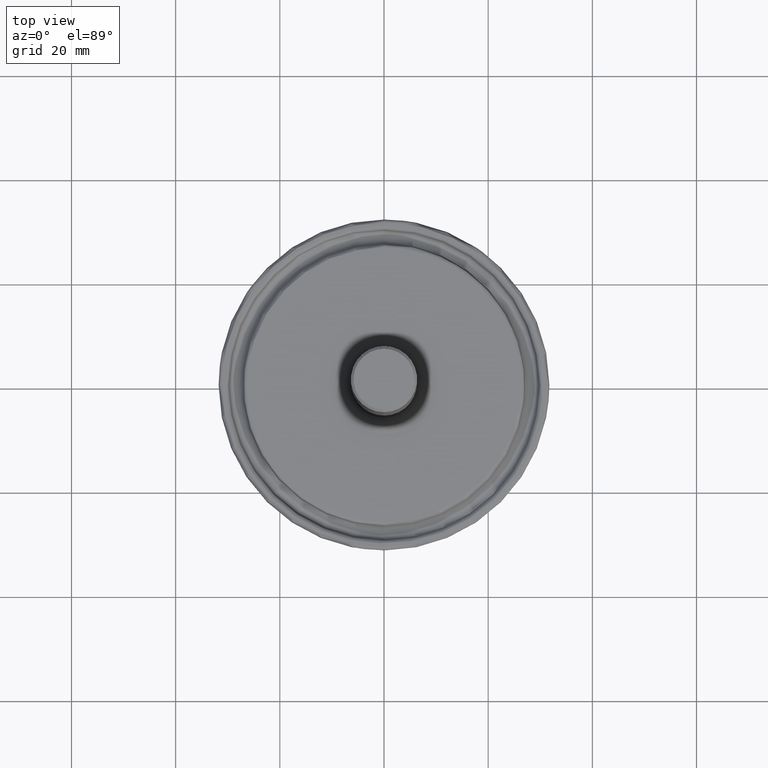
[diagram: clean part render]
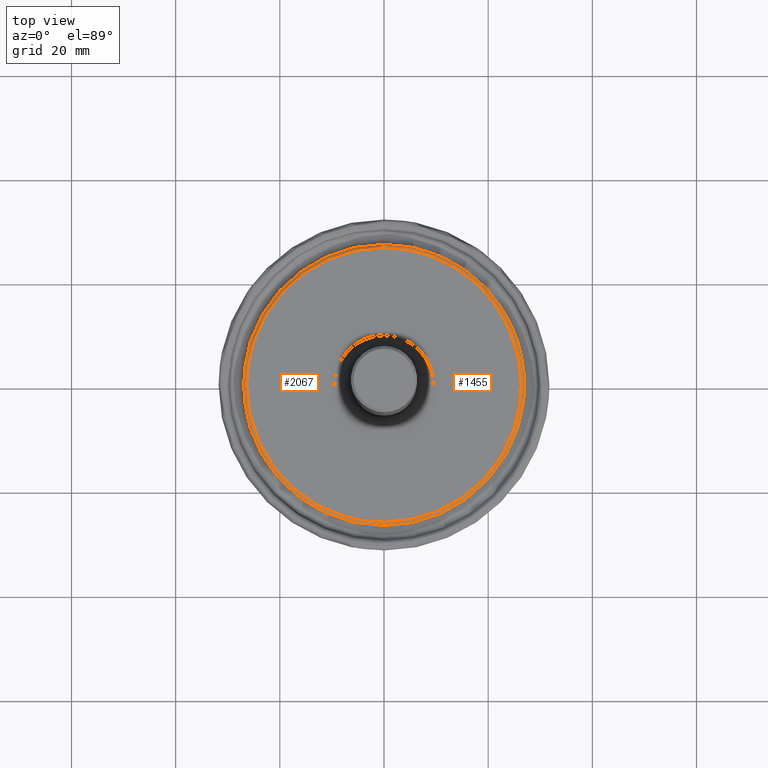
[diagram: same view with one multi-face feature highlighted, each face labeled with its STEP entity id]
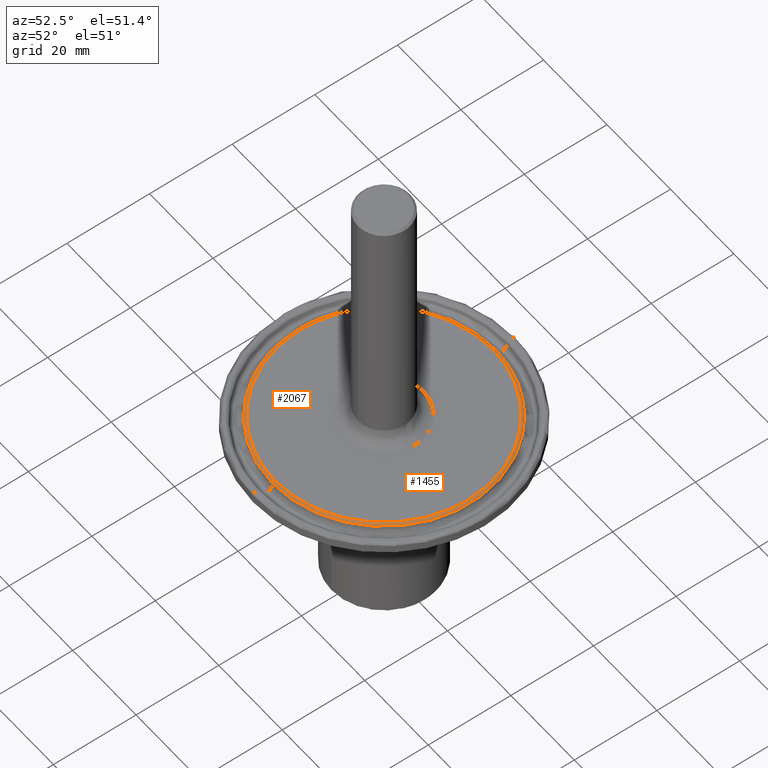
[diagram: same view with one multi-face feature highlighted, each face labeled with its STEP entity id]
A machine part, top view. The highlighted faces form ONE feature: a constant-radius fillet chain: 2 tangent blend faces with common blend radius 0.635 mm. The faces share edges in the B-rep.
A second angle (auxiliary view) of the same feature is appended — it is thin or edge-on in the first view.
Their STEP definitions:
[1] entity #2067 (Torus):
#9 = CARTESIAN_POINT ( 'NONE',  ( -0.3259867117848793700, -0.9863322835308909700, 1.749999999999998200 ) ) ;
#19 = CARTESIAN_POINT ( 'NONE',  ( -0.6845116097040635500, -0.7808722235221458000, 1.749999999999998900 ) ) ;
#21 = EDGE_CURVE ( 'NONE', #194, #2201, #453, .T. ) ;
#30 = CARTESIAN_POINT ( 'NONE',  ( -0.2606916650676283600, -1.005168411651658200, 1.749999999999998200 ) ) ;
#52 = VERTEX_POINT ( 'NONE', #307 ) ;
#99 = CARTESIAN_POINT ( 'NONE',  ( -0.9638887279538227400, 0.3863122150850117300, 1.749999999999999300 ) ) ;
#150 = CARTESIAN_POINT ( 'NONE',  ( -1.029327078243765800, -0.1371285274324676700, 1.749999999999998900 ) ) ;
#163 = DIRECTION ( 'NONE',  ( 1.000000000000000000, 1.224646799147353200E-016, 1.101989510860683400E-031 ) ) ;
#176 = CARTESIAN_POINT ( 'NONE',  ( -1.030529809761967300, -0.1278325719184723900, 1.749999999999999100 ) ) ;
#189 = CARTESIAN_POINT ( 'NONE',  ( -0.4908492883073446400, -0.9150876700406263000, 1.749999999999998400 ) ) ;
#194 = VERTEX_POINT ( 'NONE', #408 ) ;
#207 = CARTESIAN_POINT ( 'NONE',  ( -0.2582318550615463300, -1.005803274884865800, 1.749999999999998400 ) ) ;
#216 = CARTESIAN_POINT ( 'NONE',  ( -0.2733551526103650800, -1.001820746916894000, 1.749999999999998900 ) ) ;
#224 = CARTESIAN_POINT ( 'NONE',  ( -0.5486438821818544500, -0.8820525481146519500, 1.749999999999998400 ) ) ;
#253 = CARTESIAN_POINT ( 'NONE',  ( -0.03175402716435860000, 1.038420217401230000, 1.750000000000000200 ) ) ;
#262 = CARTESIAN_POINT ( 'NONE',  ( -0.1870020693033950000, 1.021443931192805400, 1.750000000000000200 ) ) ;
#271 = CARTESIAN_POINT ( 'NONE',  ( -0.1879194814532065300, 1.021275614857099200, 1.749999999999999300 ) ) ;
#280 = DIRECTION ( 'NONE',  ( -0.0000000000000000000, -8.998427233288253400E-016, 1.000000000000000000 ) ) ;
#298 = CARTESIAN_POINT ( 'NONE',  ( -1.038421164981144300, -9.864860205574895900E-011, 1.749999999991021200 ) ) ;
#307 = CARTESIAN_POINT ( 'NONE',  ( 2.496769776809862400E-016, -1.038420217418026100, 1.749999999999998200 ) ) ;
#315 = CARTESIAN_POINT ( 'NONE',  ( -0.5608735109017720700, 0.8739237310835570300, 1.750000000000000000 ) ) ;
#335 = CARTESIAN_POINT ( 'NONE',  ( 0.0000000000000000000, 1.038420217401227400, 1.725000000000001400 ) ) ;
#336 = CARTESIAN_POINT ( 'NONE',  ( -0.5161134788368816300, 0.9013864674090308300, 1.750000000000000200 ) ) ;
#350 = CARTESIAN_POINT ( 'NONE',  ( -1.019122524086511200, -0.2022552306859463400, 1.749999999999998900 ) ) ;
#361 = EDGE_LOOP ( 'NONE', ( #469, #779, #367, #2286, #740 ) ) ;
#367 = ORIENTED_EDGE ( 'NONE', *, *, #1582, .F. ) ;
#375 = CARTESIAN_POINT ( 'NONE',  ( -0.9973403103171486500, -0.2891895068565744100, 1.749999999999998400 ) ) ;
#383 = CARTESIAN_POINT ( 'NONE',  ( -1.038421164981144300, -9.864860205574895900E-011, 1.749999999991021200 ) ) ;
#407 = CARTESIAN_POINT ( 'NONE',  ( -0.8088798797885385900, -0.6521958468894716300, 1.749999999999998400 ) ) ;
#408 = CARTESIAN_POINT ( 'NONE',  ( 6.594054980606114000E-017, 1.038420217401229800, 1.750000000000000000 ) ) ;
#413 = VERTEX_POINT ( 'NONE', #567 ) ;
#415 = CARTESIAN_POINT ( 'NONE',  ( -0.9189699303666411000, -0.4846645632887349200, 1.749999999999999300 ) ) ;
#424 = AXIS2_PLACEMENT_3D ( 'NONE', #1631, #280, #876 ) ;
#451 = CARTESIAN_POINT ( 'NONE',  ( -0.1821206148999916800, 1.022328509556694700, 1.749999999999999600 ) ) ;
#453 = CIRCLE ( 'NONE', #878, 0.02500000000000014400 ) ;
#469 = ORIENTED_EDGE ( 'NONE', *, *, #1021, .F. ) ;
#487 = CARTESIAN_POINT ( 'NONE',  ( -0.8679533817657401100, 0.5700689935369375200, 1.750000000000000000 ) ) ;
#508 = CARTESIAN_POINT ( 'NONE',  ( -0.8883524830527626000, 0.5388685109817371600, 1.750000000000000200 ) ) ;
#516 = CARTESIAN_POINT ( 'NONE',  ( -0.8516741874776490000, 0.5942342001564170400, 1.750000000000000000 ) ) ;
#521 = CARTESIAN_POINT ( 'NONE',  ( -0.9147966099078624900, 0.4935950555970981000, 1.749999999999999600 ) ) ;
#536 = CARTESIAN_POINT ( 'NONE',  ( -1.033922064068743400, -0.09776786833857538400, 1.749999999999998900 ) ) ;
#546 = CARTESIAN_POINT ( 'NONE',  ( -1.038421154453198700, -0.02307202554230055800, 1.749999999999999300 ) ) ;
#552 = CARTESIAN_POINT ( 'NONE',  ( -1.029285697143051700, -0.1374389672201219400, 1.749999999999999100 ) ) ;
#556 = CARTESIAN_POINT ( 'NONE',  ( 1.271697995410313700E-016, -1.038420217401230500, 1.724999999999999900 ) ) ;
#567 = CARTESIAN_POINT ( 'NONE',  ( 1.325630225168412200E-016, -1.062571017127726500, 1.731460562867947800 ) ) ;
#575 = CARTESIAN_POINT ( 'NONE',  ( -0.7739947928155801500, -0.6939684828888171800, 1.749999999999998900 ) ) ;
#581 = CARTESIAN_POINT ( 'NONE',  ( -0.8393187701294979600, -0.6114673053687513800, 1.749999999999998900 ) ) ;
#602 = CARTESIAN_POINT ( 'NONE',  ( -0.9342176996938612600, -0.4533821441673139800, 1.749999999999998400 ) ) ;
#661 = CIRCLE ( 'NONE', #424, 1.062571017127725200 ) ;
#679 = CARTESIAN_POINT ( 'NONE',  ( -0.5423510034522405200, 0.8856138487741458400, 1.750000000000000200 ) ) ;
#689 = DIRECTION ( 'NONE',  ( -1.000000000000000000, 0.0000000000000000000, 0.0000000000000000000 ) ) ;
#690 = CARTESIAN_POINT ( 'NONE',  ( -1.020904267671921800, 0.1899298576050086600, 1.749999999999999100 ) ) ;
#692 = B_SPLINE_CURVE_WITH_KNOTS ( 'NONE', 3,
 ( #1293, #546, #938, #536, #920, #176, #1720, #1711, #1119, #150, #552, #1128, #350, #1132, #1310, #2112, #1490, #1319, #375, #1889, #2480, #1696, #1897, #784, #1528, #1755, #1726, #1556, #602, #1164, #801, #415, #2339, #1940, #1958, #581, #2509, #2311, #2138, #1536, #1174, #407, #575, #970, #1931, #775, #978, #1544, #19, #2330, #2146, #2158, #2320, #224, #1366, #988, #2129, #767, #189, #963, #1331, #1357, #9, #2347, #216, #1181, #30, #207, #1348, #1147, #1746 ),
 .UNSPECIFIED., .F., .F.,
 ( 4, 1, 1, 1, 1, 1, 1, 2, 2, 1, 1, 1, 1, 1, 1, 2, 2, 1, 1, 1, 1, 1, 1, 2, 2, 1, 1, 1, 1, 1, 1, 2, 2, 1, 1, 1, 1, 1, 1, 2, 2, 1, 1, 1, 1, 1, 2, 2, 1, 1, 1, 1, 2, 2, 4 ),
 ( 0.0000000000000000000, 0.03125000356472244100, 0.04687500534708365100, 0.05468750623826425200, 0.05859375668385455300, 0.06054688190664968300, 0.06152344451804724100, 0.06201172582374602600, 0.06250000712944479800, 0.09375001069416531700, 0.1093750124765255800, 0.1171875133677057200, 0.1210937638132957600, 0.1230468890360907900, 0.1240234516474883100, 0.1245117329531870700, 0.1250000142588858200, 0.1562500178236057300, 0.1718750196059656600, 0.1796875204971455900, 0.1835937709427356000, 0.1855468961655306300, 0.1865234587769281600, 0.1870117400826269400, 0.1875000213883257200, 0.2187500249530488200, 0.2343750267354103900, 0.2421875276265911500, 0.2460937780721816100, 0.2480469032949768100, 0.2490234659063743900, 0.2495117472120730600, 0.2500000285177717600, 0.2812500320824851100, 0.2968750338648417600, 0.3046875347560200600, 0.3085937852016091300, 0.3105469104244038000, 0.3115234730358010800, 0.3120117543414996900, 0.3125000356471983600, 0.3437500392119092200, 0.3593750409942646500, 0.3671875418854423400, 0.3710937923310311800, 0.3730469175538256300, 0.3740234801652228000, 0.3750000427766199700, 0.4062500463413290000, 0.4218750481236835400, 0.4296875490148607300, 0.4335937994604494000, 0.4355469246832436900, 0.4375000499060380200, 0.5000000570354565800 ),
 .UNSPECIFIED. ) ;
#707 = CARTESIAN_POINT ( 'NONE',  ( -0.5663589806837613400, 0.8703786785885895300, 1.749999999999999600 ) ) ;
#740 = ORIENTED_EDGE ( 'NONE', *, *, #2504, .T. ) ;
#767 = CARTESIAN_POINT ( 'NONE',  ( -0.4930262031977842300, -0.9139167196680704200, 1.749999999999998400 ) ) ;
#775 = CARTESIAN_POINT ( 'NONE',  ( -0.6947328680203278500, -0.7718169278216485700, 1.749999999999999100 ) ) ;
#779 = ORIENTED_EDGE ( 'NONE', *, *, #1449, .F. ) ;
#784 = CARTESIAN_POINT ( 'NONE',  ( -0.9549870538187252800, -0.4082951478848140200, 1.749999999999998900 ) ) ;
#801 = CARTESIAN_POINT ( 'NONE',  ( -0.9336377920893752500, -0.4545752207429437100, 1.749999999999998900 ) ) ;
#843 = CARTESIAN_POINT ( 'NONE',  ( -0.3547347224469492000, 0.9760164777158830700, 1.750000000000000000 ) ) ;
#855 = CARTESIAN_POINT ( 'NONE',  ( -0.07918881184101081400, 1.036253212031318600, 1.750000000000000000 ) ) ;
#874 = CARTESIAN_POINT ( 'NONE',  ( -0.9647023728083035100, 0.3842757986642577100, 1.750000000000000000 ) ) ;
#876 = DIRECTION ( 'NONE',  ( 0.0000000000000000000, -1.000000000000000000, -1.028391683804371900E-015 ) ) ;
#878 = AXIS2_PLACEMENT_3D ( 'NONE', #335, #689, #1675 ) ;
#890 = CARTESIAN_POINT ( 'NONE',  ( -0.8642207634462011300, 0.5757125199042663100, 1.749999999999999300 ) ) ;
#897 = CIRCLE ( 'NONE', #2249, 0.02500000000000000500 ) ;
#900 = CARTESIAN_POINT ( 'NONE',  ( -0.8604919990374611000, 0.5812977326584317600, 1.750000000000000000 ) ) ;
#920 = CARTESIAN_POINT ( 'NONE',  ( -1.031744320221975800, -0.1178163702267758500, 1.749999999999999300 ) ) ;
#938 = CARTESIAN_POINT ( 'NONE',  ( -1.037272443469289000, -0.05760647054294589600, 1.749999999999999300 ) ) ;
#939 = DIRECTION ( 'NONE',  ( 0.0000000000000000000, 1.000000000000000000, 8.998427233288253400E-016 ) ) ;
#963 = CARTESIAN_POINT ( 'NONE',  ( -0.4898253094498000700, -0.9156362858934885600, 1.749999999999998900 ) ) ;
#970 = CARTESIAN_POINT ( 'NONE',  ( -0.7296209164250129200, -0.7393032918293874800, 1.749999999999998900 ) ) ;
#978 = CARTESIAN_POINT ( 'NONE',  ( -0.6887842231935676900, -0.7771119112609274900, 1.749999999999998200 ) ) ;
#988 = CARTESIAN_POINT ( 'NONE',  ( -0.5038720923219164300, -0.9080060550760954400, 1.749999999999998000 ) ) ;
#1021 = EDGE_CURVE ( 'NONE', #52, #413, #897, .T. ) ;
#1032 = CARTESIAN_POINT ( 'NONE',  ( -0.3743984264495929800, 0.9685799207438041700, 1.750000000000000000 ) ) ;
#1051 = CARTESIAN_POINT ( 'NONE',  ( -0.1752835377883106600, 1.023533341969392600, 1.750000000000000000 ) ) ;
#1061 = CARTESIAN_POINT ( 'NONE',  ( 6.594054980606114000E-017, 1.038420217401229800, 1.750000000000000000 ) ) ;
#1067 = CARTESIAN_POINT ( 'NONE',  ( -0.9941485044505203900, 0.3032912187075123000, 1.749999999999999300 ) ) ;
#1078 = CARTESIAN_POINT ( 'NONE',  ( -0.5645583717296358600, 0.8715476124520853400, 1.749999999999999300 ) ) ;
#1087 = CARTESIAN_POINT ( 'NONE',  ( -0.9415275335849453400, 0.4386310225282772400, 1.749999999999999600 ) ) ;
#1102 = CARTESIAN_POINT ( 'NONE',  ( -1.020310960543362500, 0.1930921054868487700, 1.749999999999999100 ) ) ;
#1119 = CARTESIAN_POINT ( 'NONE',  ( -1.029422055323664800, -0.1364136114888729900, 1.749999999999999100 ) ) ;
#1128 = CARTESIAN_POINT ( 'NONE',  ( -1.025765482962744300, -0.1637277154780779100, 1.749999999999999600 ) ) ;
#1132 = CARTESIAN_POINT ( 'NONE',  ( -1.008845627091728500, -0.2466808468524341000, 1.749999999999998900 ) ) ;
#1147 = CARTESIAN_POINT ( 'NONE',  ( -0.08652159665325430400, -1.038418596698148500, 1.749999999999998400 ) ) ;
#1164 = CARTESIAN_POINT ( 'NONE',  ( -0.9338153449656073600, -0.4542102992379409300, 1.749999999999999300 ) ) ;
#1174 = CARTESIAN_POINT ( 'NONE',  ( -0.8310782673276442300, -0.6225968409743589700, 1.749999999999998200 ) ) ;
#1181 = CARTESIAN_POINT ( 'NONE',  ( -0.2657613464824449800, -1.003840374881304500, 1.749999999999998400 ) ) ;
#1225 = CARTESIAN_POINT ( 'NONE',  ( -0.3801981679359759400, 0.9663180781037166200, 1.749999999999999300 ) ) ;
#1256 = CARTESIAN_POINT ( 'NONE',  ( -1.038421066031928900, 0.06352171290301422700, 1.749999999999999100 ) ) ;
#1265 = CARTESIAN_POINT ( 'NONE',  ( -0.6282256754941987200, 0.8299332886256808300, 1.749999999999999100 ) ) ;
#1279 = CARTESIAN_POINT ( 'NONE',  ( -0.7954812024817263800, 0.6691735284824537100, 1.750000000000000000 ) ) ;
#1293 = CARTESIAN_POINT ( 'NONE',  ( -1.038421164981144300, -9.864860205574895900E-011, 1.749999999991021200 ) ) ;
#1310 = CARTESIAN_POINT ( 'NONE',  ( -1.003075484017876400, -0.2687628670416720200, 1.749999999999998900 ) ) ;
#1319 = CARTESIAN_POINT ( 'NONE',  ( -0.9976811508567534600, -0.2880131100777209000, 1.749999999999999100 ) ) ;
#1331 = CARTESIAN_POINT ( 'NONE',  ( -0.4516545918354475400, -0.9359949170770525100, 1.749999999999998200 ) ) ;
#1348 = CARTESIAN_POINT ( 'NONE',  ( -0.1717522719096153700, -1.027768149423777600, 1.749999999999998200 ) ) ;
#1357 = CARTESIAN_POINT ( 'NONE',  ( -0.3947619007617582700, -0.9620781519892076500, 1.749999999999998200 ) ) ;
#1366 = CARTESIAN_POINT ( 'NONE',  ( -0.5189357886217914600, -0.8995568933686157700, 1.749999999999997600 ) ) ;
#1440 = CARTESIAN_POINT ( 'NONE',  ( -0.6835916194724822600, 0.7849544467239207800, 1.749999999999999600 ) ) ;
#1447 = CARTESIAN_POINT ( 'NONE',  ( -0.9626636618354343900, 0.3893644457409347100, 1.749999999999999600 ) ) ;
#1449 = EDGE_CURVE ( 'NONE', #1768, #52, #692, .T. ) ;
#1457 = CARTESIAN_POINT ( 'NONE',  ( -0.4625740324374161300, 0.9308671963937931200, 1.750000000000000400 ) ) ;
#1465 = CARTESIAN_POINT ( 'NONE',  ( -1.008987050624239300, 0.2465198560529791000, 1.749999999999999600 ) ) ;
#1490 = CARTESIAN_POINT ( 'NONE',  ( -0.9984715103352852500, -0.2852671624799728000, 1.749999999999998400 ) ) ;
#1528 = CARTESIAN_POINT ( 'NONE',  ( -0.9444547806287438800, -0.4317643163503945800, 1.749999999999998900 ) ) ;
#1536 = CARTESIAN_POINT ( 'NONE',  ( -0.8313546496959761700, -0.6222276838450129200, 1.749999999999999100 ) ) ;
#1544 = CARTESIAN_POINT ( 'NONE',  ( -0.6857955468416892000, -0.7797461219920567300, 1.749999999999998400 ) ) ;
#1556 = CARTESIAN_POINT ( 'NONE',  ( -0.9348203773694713200, -0.4521395845118920100, 1.749999999999998900 ) ) ;
#1582 = EDGE_CURVE ( 'NONE', #194, #1768, #2220, .T. ) ;
#1595 = CARTESIAN_POINT ( 'NONE',  ( -0.1615986508111269000, 1.025824498688621400, 1.749999999999999600 ) ) ;
#1603 = CARTESIAN_POINT ( 'NONE',  ( -0.2220623695905487300, 1.014958081156873200, 1.750000000000000000 ) ) ;
#1631 = CARTESIAN_POINT ( 'NONE',  ( 0.0000000000000000000, -1.445136171002950000E-015, 1.731460562867948900 ) ) ;
#1639 = CARTESIAN_POINT ( 'NONE',  ( -0.5553367161138264000, 0.8774694759210778200, 1.749999999999999600 ) ) ;
#1657 = CARTESIAN_POINT ( 'NONE',  ( -0.8666954291212897200, 0.5719799308686258600, 1.749999999999998900 ) ) ;
#1665 = CARTESIAN_POINT ( 'NONE',  ( -1.015378544678856100, 0.2178362818384783600, 1.749999999999999600 ) ) ;
#1675 = DIRECTION ( 'NONE',  ( 0.0000000000000000000, 0.0000000000000000000, 1.000000000000000000 ) ) ;
#1676 = CARTESIAN_POINT ( 'NONE',  ( -0.9597729823691904000, 0.3964695594449620900, 1.749999999999999300 ) ) ;
#1696 = CARTESIAN_POINT ( 'NONE',  ( -0.9886386583295737600, -0.3190308340460050200, 1.749999999999998200 ) ) ;
#1711 = CARTESIAN_POINT ( 'NONE',  ( -1.029563960057188200, -0.1353412016393182900, 1.749999999999999300 ) ) ;
#1716 = TOROIDAL_SURFACE ( 'NONE', #2407, 1.038420217401228900, 0.02500000000000005700 ) ;
#1720 = CARTESIAN_POINT ( 'NONE',  ( -1.029891144897807600, -0.1328386604512199500, 1.749999999999999100 ) ) ;
#1726 = CARTESIAN_POINT ( 'NONE',  ( -0.9362206443618267300, -0.4492379893028716800, 1.749999999999998900 ) ) ;
#1744 = FACE_OUTER_BOUND ( 'NONE', #361, .T. ) ;
#1746 = CARTESIAN_POINT ( 'NONE',  ( 2.496769776809862400E-016, -1.038420217418026100, 1.749999999999998200 ) ) ;
#1755 = CARTESIAN_POINT ( 'NONE',  ( -0.9389972546769355100, -0.4434256414993508800, 1.749999999999998400 ) ) ;
#1768 = VERTEX_POINT ( 'NONE', #383 ) ;
#1801 = CARTESIAN_POINT ( 'NONE',  ( -0.2710539222810692800, 1.003416860603020700, 1.750000000000000200 ) ) ;
#1837 = CARTESIAN_POINT ( 'NONE',  ( -0.9779059367625004800, 0.3509310396551679800, 1.749999999999999300 ) ) ;
#1856 = CARTESIAN_POINT ( 'NONE',  ( -1.019722511893212300, 0.1961932730394377900, 1.749999999999999100 ) ) ;
#1865 = CARTESIAN_POINT ( 'NONE',  ( -0.4148583975200214000, 0.9525972356064346100, 1.750000000000000000 ) ) ;
#1883 = DIRECTION ( 'NONE',  ( -1.224646799147357900E-016, 1.000000000000000000, 0.0000000000000000000 ) ) ;
#1889 = CARTESIAN_POINT ( 'NONE',  ( -0.9971126132798999700, -0.2899736740633894200, 1.749999999999998900 ) ) ;
#1897 = CARTESIAN_POINT ( 'NONE',  ( -0.9745204853441448200, -0.3607707382829900600, 1.749999999999998000 ) ) ;
#1931 = CARTESIAN_POINT ( 'NONE',  ( -0.7065153261658666500, -0.7611207130350053900, 1.749999999999998900 ) ) ;
#1940 = CARTESIAN_POINT ( 'NONE',  ( -0.8641885906194867200, -0.5761797104913836100, 1.749999999999999300 ) ) ;
#1958 = CARTESIAN_POINT ( 'NONE',  ( -0.8477547456003828900, -0.5997935908775556800, 1.749999999999998900 ) ) ;
#2005 = CARTESIAN_POINT ( 'NONE',  ( -0.3270367811576112600, 0.9858359621942520700, 1.750000000000000200 ) ) ;
#2038 = CARTESIAN_POINT ( 'NONE',  ( -0.9538628560100195200, 0.4106127555471814100, 1.749999999999999300 ) ) ;
#2063 = CARTESIAN_POINT ( 'NONE',  ( -0.8335691192670177100, 0.6197243527721197900, 1.749999999999999600 ) ) ;
#2067 = ADVANCED_FACE ( 'NONE', ( #1744 ), #1716, .T. ) ;
#2072 = CARTESIAN_POINT ( 'NONE',  ( -0.7596153646131431600, 0.7089337427694737400, 1.750000000000000400 ) ) ;
#2112 = CARTESIAN_POINT ( 'NONE',  ( -1.000032488836834800, -0.2797711801627896200, 1.749999999999998400 ) ) ;
#2129 = CARTESIAN_POINT ( 'NONE',  ( -0.4962878317920181900, -0.9121548831999586300, 1.749999999999998400 ) ) ;
#2138 = CARTESIAN_POINT ( 'NONE',  ( -0.8319715621258885200, -0.6214025702070754600, 1.749999999999999100 ) ) ;
#2146 = CARTESIAN_POINT ( 'NONE',  ( -0.6832629033328815300, -0.7819651190400562800, 1.749999999999998200 ) ) ;
#2158 = CARTESIAN_POINT ( 'NONE',  ( -0.6529982434094201400, -0.8083789537569812100, 1.749999999999998200 ) ) ;
#2201 = VERTEX_POINT ( 'NONE', #2299 ) ;
#2204 = CARTESIAN_POINT ( 'NONE',  ( -0.3685103210543847500, 0.9708494766582024300, 1.750000000000000000 ) ) ;
#2219 = CARTESIAN_POINT ( 'NONE',  ( -0.1341859458414714800, 1.029932779702411400, 1.750000000000000000 ) ) ;
#2220 = B_SPLINE_CURVE_WITH_KNOTS ( 'NONE', 3,
 ( #1061, #253, #855, #2219, #1595, #1051, #451, #2385, #262, #271, #1603, #1801, #2005, #843, #2204, #1032, #2394, #1225, #1865, #1457, #336, #679, #1639, #315, #1078, #707, #1265, #1440, #2072, #1279, #2063, #516, #900, #890, #1657, #487, #508, #521, #1087, #2038, #1676, #1447, #99, #874, #2235, #1837, #1067, #1465, #1665, #2455, #1856, #1102, #2261, #690, #2428, #1256, #298 ),
 .UNSPECIFIED., .F., .F.,
 ( 4, 1, 1, 1, 1, 1, 2, 2, 1, 1, 1, 1, 2, 2, 1, 1, 1, 1, 2, 2, 2, 1, 1, 1, 1, 2, 2, 1, 1, 1, 1, 1, 2, 2, 1, 1, 1, 1, 1, 2, 2, 4 ),
 ( 0.0000000000000000000, 0.06250000000000161000, 0.09375000000000242900, 0.1093750000000028200, 0.1171875000000030300, 0.1210937500000030800, 0.1230468750000031100, 0.1250000000000031400, 0.1875000000000030500, 0.2187500000000030300, 0.2343750000000029700, 0.2421875000000029100, 0.2460937500000028600, 0.2500000000000028300, 0.3125000000000037200, 0.3437500000000042200, 0.3593750000000045500, 0.3671875000000047700, 0.3710937500000047700, 0.3750000000000047700, 0.5000000000000035500, 0.5625000000000031100, 0.5937500000000028900, 0.6093750000000027800, 0.6171875000000028900, 0.6210937500000028900, 0.6250000000000028900, 0.6875000000000048800, 0.7187500000000058800, 0.7343750000000063300, 0.7421875000000065500, 0.7460937500000066600, 0.7480468750000066600, 0.7500000000000065500, 0.8125000000000055500, 0.8437500000000051100, 0.8593750000000046600, 0.8671875000000044400, 0.8710937500000044400, 0.8730468750000044400, 0.8750000000000043300, 1.000000000000000000 ),
 .UNSPECIFIED. ) ;
#2235 = CARTESIAN_POINT ( 'NONE',  ( -0.9651240901406053000, 0.3832152991624556700, 1.750000000000000000 ) ) ;
#2249 = AXIS2_PLACEMENT_3D ( 'NONE', #556, #163, #1883 ) ;
#2261 = CARTESIAN_POINT ( 'NONE',  ( -1.020700200777296100, 0.1910237738658155400, 1.749999999999999600 ) ) ;
#2286 = ORIENTED_EDGE ( 'NONE', *, *, #21, .T. ) ;
#2299 = CARTESIAN_POINT ( 'NONE',  ( 1.937944313126258400E-018, 1.062571017127723600, 1.731460562867950000 ) ) ;
#2311 = CARTESIAN_POINT ( 'NONE',  ( -0.8328959528557512400, -0.6201643049925710200, 1.749999999999998900 ) ) ;
#2320 = CARTESIAN_POINT ( 'NONE',  ( -0.6063828731432341400, -0.8446197702506976800, 1.749999999999998000 ) ) ;
#2330 = CARTESIAN_POINT ( 'NONE',  ( -0.6836549680914320000, -0.7816223254475138700, 1.749999999999999100 ) ) ;
#2339 = CARTESIAN_POINT ( 'NONE',  ( -0.8953038569670295200, -0.5278861441039165400, 1.749999999999998400 ) ) ;
#2347 = CARTESIAN_POINT ( 'NONE',  ( -0.2909990216153796000, -0.9969152720044417400, 1.749999999999998200 ) ) ;
#2385 = CARTESIAN_POINT ( 'NONE',  ( -0.1850496408670883100, 1.021799455511305900, 1.750000000000000000 ) ) ;
#2394 = CARTESIAN_POINT ( 'NONE',  ( -0.3783203361398633800, 0.9670546330476104100, 1.750000000000000200 ) ) ;
#2407 = AXIS2_PLACEMENT_3D ( 'NONE', #2495, #2503, #939 ) ;
#2428 = CARTESIAN_POINT ( 'NONE',  ( -1.032642295275539400, 0.1265064170578367200, 1.749999999999999100 ) ) ;
#2455 = CARTESIAN_POINT ( 'NONE',  ( -1.018317346948103900, 0.2034200215094193700, 1.749999999999999600 ) ) ;
#2480 = CARTESIAN_POINT ( 'NONE',  ( -0.9970130466986333300, -0.2903159319380093100, 1.749999999999998400 ) ) ;
#2495 = CARTESIAN_POINT ( 'NONE',  ( 0.0000000000000000000, -1.439322680517618200E-015, 1.725000000000000500 ) ) ;
#2503 = DIRECTION ( 'NONE',  ( 0.0000000000000000000, 8.998427233288253400E-016, -1.000000000000000000 ) ) ;
#2504 = EDGE_CURVE ( 'NONE', #2201, #413, #661, .T. ) ;
#2509 = CARTESIAN_POINT ( 'NONE',  ( -0.8350460191537222300, -0.6172708561888756700, 1.749999999999998400 ) ) ;
[2] entity #1455 (Torus):
#2 = CARTESIAN_POINT ( 'NONE',  ( 1.003416860397269500, 0.2710539177695284700, 1.749999999999999300 ) ) ;
#21 = EDGE_CURVE ( 'NONE', #194, #2201, #453, .T. ) ;
#24 = CARTESIAN_POINT ( 'NONE',  ( 0.4935950532392385800, 0.9147962759057711700, 1.750000000000000000 ) ) ;
#31 = FACE_OUTER_BOUND ( 'NONE', #1423, .T. ) ;
#41 = CARTESIAN_POINT ( 'NONE',  ( 0.8299332872768090400, 0.6282255997203042300, 1.750000000000000000 ) ) ;
#52 = VERTEX_POINT ( 'NONE', #307 ) ;
#58 = CARTESIAN_POINT ( 'NONE',  ( 0.9308671957779847100, 0.4625740045723539800, 1.749999999999999100 ) ) ;
#68 = CARTESIAN_POINT ( 'NONE',  ( 0.9639308940717681300, -0.3881760860672310300, 1.749999999999998900 ) ) ;
#92 = CARTESIAN_POINT ( 'NONE',  ( 0.5235676695554488700, -0.8976409564987234400, 1.749999999999998200 ) ) ;
#105 = CARTESIAN_POINT ( 'NONE',  ( 0.4230771543913447500, -0.9487487565181050900, 1.749999999999998200 ) ) ;
#115 = CARTESIAN_POINT ( 'NONE',  ( 0.6762585258738672600, -0.7880368182192202300, 1.749999999999998900 ) ) ;
#128 = B_SPLINE_CURVE_WITH_KNOTS ( 'NONE', 3,
 ( #1952, #570, #798, #2151, #2302, #1926, #179, #772, #2128, #958, #192, #2, #1343, #1730, #1739, #966, #586, #787, #1388, #58, #1371, #1559, #1208, #1193, #429, #2361, #41, #1769, #611, #245, #237, #1394, #1758, #1972, #1986, #1978, #2186, #24, #827, #1382, #251, #813, #2167, #1584, #1016, #1001, #606, #1007, #1574, #620, #1789, #834, #450, #1593, #438, #1778, #1962 ),
 .UNSPECIFIED., .F., .F.,
 ( 4, 1, 1, 1, 1, 1, 2, 2, 1, 1, 1, 1, 2, 2, 1, 1, 1, 1, 2, 2, 2, 1, 1, 1, 1, 2, 2, 1, 1, 1, 1, 1, 2, 2, 1, 1, 1, 1, 1, 2, 2, 4 ),
 ( 0.0000000000000000000, 0.06249999999999857100, 0.09374999999999784900, 0.1093749999999975000, 0.1171874999999973100, 0.1210937499999971700, 0.1230468749999970700, 0.1249999999999969700, 0.1874999999999955600, 0.2187499999999948900, 0.2343749999999945300, 0.2421874999999942800, 0.2460937499999942300, 0.2499999999999941700, 0.3124999999999937300, 0.3437499999999934500, 0.3593749999999933400, 0.3671874999999932300, 0.3710937499999931200, 0.3749999999999930100, 0.4999999999999940000, 0.5624999999999943400, 0.5937499999999947800, 0.6093749999999948900, 0.6171874999999951200, 0.6210937499999952300, 0.6249999999999953400, 0.6874999999999964500, 0.7187499999999970000, 0.7343749999999973400, 0.7421874999999973400, 0.7460937499999973400, 0.7480468749999974500, 0.7499999999999974500, 0.8124999999999993300, 0.8437500000000001100, 0.8593750000000005600, 0.8671875000000006700, 0.8710937500000007800, 0.8730468750000006700, 0.8750000000000006700, 1.000000000000000000 ),
 .UNSPECIFIED. ) ;
#139 = AXIS2_PLACEMENT_3D ( 'NONE', #2097, #1947, #594 ) ;
#163 = DIRECTION ( 'NONE',  ( 1.000000000000000000, 1.224646799147353200E-016, 1.101989510860683400E-031 ) ) ;
#179 = CARTESIAN_POINT ( 'NONE',  ( 1.022328509557618400, 0.1821206131278854400, 1.749999999999999100 ) ) ;
#192 = CARTESIAN_POINT ( 'NONE',  ( 1.014958081039452500, 0.2220623672101723900, 1.749999999999999100 ) ) ;
#194 = VERTEX_POINT ( 'NONE', #408 ) ;
#195 = CARTESIAN_POINT ( 'NONE',  ( 1.029012645126902200, -0.1394619258638881700, 1.749999999999999600 ) ) ;
#197 = CARTESIAN_POINT ( 'NONE',  ( 0.7912497077881508500, -0.6729332314449880700, 1.749999999999998900 ) ) ;
#204 = CARTESIAN_POINT ( 'NONE',  ( 0.9204771592406998400, -0.4807921999739643300, 1.749999999999999100 ) ) ;
#237 = CARTESIAN_POINT ( 'NONE',  ( 0.6197243514352711600, 0.8335688957429738800, 1.749999999999999600 ) ) ;
#245 = CARTESIAN_POINT ( 'NONE',  ( 0.6691735266833649400, 0.7954810190009752300, 1.750000000000000000 ) ) ;
#251 = CARTESIAN_POINT ( 'NONE',  ( 0.3964695589388411700, 0.9597725487021913100, 1.749999999999999600 ) ) ;
#263 = CARTESIAN_POINT ( 'NONE',  ( 0.9318265276555883800, -0.4582768501235020000, 1.749999999999999100 ) ) ;
#278 = CARTESIAN_POINT ( 'NONE',  ( 0.7102438988732734400, -0.7584185323116733300, 1.749999999999998900 ) ) ;
#287 = CARTESIAN_POINT ( 'NONE',  ( 0.2530699760621474300, -1.007114105436096400, 1.749999999999998200 ) ) ;
#307 = CARTESIAN_POINT ( 'NONE',  ( 2.496769776809862400E-016, -1.038420217418026100, 1.749999999999998200 ) ) ;
#314 = CARTESIAN_POINT ( 'NONE',  ( 0.6795320647944339500, -0.7852103887786176000, 1.749999999999998900 ) ) ;
#335 = CARTESIAN_POINT ( 'NONE',  ( 0.0000000000000000000, 1.038420217401227400, 1.725000000000001400 ) ) ;
#408 = CARTESIAN_POINT ( 'NONE',  ( 6.594054980606114000E-017, 1.038420217401229800, 1.750000000000000000 ) ) ;
#413 = VERTEX_POINT ( 'NONE', #567 ) ;
#429 = CARTESIAN_POINT ( 'NONE',  ( 0.8715476124206572600, 0.5645583150735843400, 1.749999999999999300 ) ) ;
#438 = CARTESIAN_POINT ( 'NONE',  ( 0.1265064136880152700, 1.032641536415132000, 1.750000000000000000 ) ) ;
#446 = CARTESIAN_POINT ( 'NONE',  ( 1.038420217401229600, -1.316801821733953800E-015, 1.749999999999999100 ) ) ;
#450 = CARTESIAN_POINT ( 'NONE',  ( 0.1910237738447992700, 1.020699525217090100, 1.750000000000000400 ) ) ;
#452 = CARTESIAN_POINT ( 'NONE',  ( 0.9302324997677919900, -0.4615100984005609000, 1.749999999999998900 ) ) ;
#453 = CIRCLE ( 'NONE', #878, 0.02500000000000014400 ) ;
#458 = CARTESIAN_POINT ( 'NONE',  ( 1.027660218573876300, -0.1491636586213285800, 1.749999999999999100 ) ) ;
#485 = CARTESIAN_POINT ( 'NONE',  ( 0.4724195717509687700, -0.9247634021175500400, 1.749999999999998400 ) ) ;
#515 = CARTESIAN_POINT ( 'NONE',  ( 0.2372431228789545500, -1.010983080744626100, 1.749999999999998000 ) ) ;
#556 = CARTESIAN_POINT ( 'NONE',  ( 1.271697995410313700E-016, -1.038420217401230500, 1.724999999999999900 ) ) ;
#567 = CARTESIAN_POINT ( 'NONE',  ( 1.325630225168412200E-016, -1.062571017127726500, 1.731460562867947800 ) ) ;
#570 = CARTESIAN_POINT ( 'NONE',  ( 1.038420217401230500, 0.03175402748462197900, 1.749999999999999300 ) ) ;
#586 = CARTESIAN_POINT ( 'NONE',  ( 0.9670546330377262100, 0.3783203200541117600, 1.750000000000000000 ) ) ;
#594 = DIRECTION ( 'NONE',  ( 0.0000000000000000000, 1.000000000000000000, 8.998427233288253400E-016 ) ) ;
#606 = CARTESIAN_POINT ( 'NONE',  ( 0.3032912159585589600, 0.9941479689408643200, 1.750000000000000200 ) ) ;
#611 = CARTESIAN_POINT ( 'NONE',  ( 0.7089337417508556600, 0.7596152095288289900, 1.750000000000000200 ) ) ;
#620 = CARTESIAN_POINT ( 'NONE',  ( 0.2034200209268731700, 1.018316687516814600, 1.750000000000000200 ) ) ;
#632 = CARTESIAN_POINT ( 'NONE',  ( 0.9959769486702803000, -0.2938500304122800300, 1.749999999999999300 ) ) ;
#635 = EDGE_CURVE ( 'NONE', #413, #2201, #2358, .T. ) ;
#642 = CARTESIAN_POINT ( 'NONE',  ( 1.025984682187433400, -0.1604612383365122100, 1.749999999999998900 ) ) ;
#646 = ORIENTED_EDGE ( 'NONE', *, *, #2321, .F. ) ;
#656 = ORIENTED_EDGE ( 'NONE', *, *, #21, .F. ) ;
#688 = CARTESIAN_POINT ( 'NONE',  ( 0.5740081965378612800, -0.8669466628307932500, 1.749999999999998200 ) ) ;
#689 = DIRECTION ( 'NONE',  ( -1.000000000000000000, 0.0000000000000000000, 0.0000000000000000000 ) ) ;
#698 = CARTESIAN_POINT ( 'NONE',  ( 0.6818650264850666400, -0.7831838292199457800, 1.749999999999998400 ) ) ;
#705 = CARTESIAN_POINT ( 'NONE',  ( 0.2503670211048397700, -1.007789784019973000, 1.749999999999998000 ) ) ;
#772 = CARTESIAN_POINT ( 'NONE',  ( 1.021799455512260300, 0.1850496390058709000, 1.749999999999998900 ) ) ;
#782 = CARTESIAN_POINT ( 'NONE',  ( 1.004196358811625400, -0.2656870938918103300, 1.749999999999998400 ) ) ;
#787 = CARTESIAN_POINT ( 'NONE',  ( 0.9663180781307637600, 0.3801981515095700400, 1.749999999999999600 ) ) ;
#798 = CARTESIAN_POINT ( 'NONE',  ( 1.036253212031443400, 0.07918881215369083500, 1.749999999999999300 ) ) ;
#813 = CARTESIAN_POINT ( 'NONE',  ( 0.3893644455080687600, 0.9626632204894014500, 1.750000000000000000 ) ) ;
#827 = CARTESIAN_POINT ( 'NONE',  ( 0.4386310207773924100, 0.9415271444238353400, 1.749999999999999600 ) ) ;
#829 = CARTESIAN_POINT ( 'NONE',  ( 0.9329595918876777400, -0.4559639931951401400, 1.749999999999999100 ) ) ;
#834 = CARTESIAN_POINT ( 'NONE',  ( 0.1930921053681840500, 1.020310287684395900, 1.750000000000000000 ) ) ;
#839 = CARTESIAN_POINT ( 'NONE',  ( 1.028458576182393400, -0.1435063544100576600, 1.749999999999999100 ) ) ;
#845 = CARTESIAN_POINT ( 'NONE',  ( 0.8300525537321562500, -0.6239627844067808800, 1.749999999999998900 ) ) ;
#878 = AXIS2_PLACEMENT_3D ( 'NONE', #335, #689, #1675 ) ;
#897 = CIRCLE ( 'NONE', #2249, 0.02500000000000000500 ) ;
#958 = CARTESIAN_POINT ( 'NONE',  ( 1.021275614861795000, 0.1879194794833920500, 1.749999999999999300 ) ) ;
#966 = CARTESIAN_POINT ( 'NONE',  ( 0.9685799207198875200, 0.3743984109089551500, 1.749999999999999100 ) ) ;
#1001 = CARTESIAN_POINT ( 'NONE',  ( 0.3509310381082884100, 0.9779054546548972000, 1.749999999999999600 ) ) ;
#1007 = CARTESIAN_POINT ( 'NONE',  ( 0.2465198540138992000, 1.008986446004214600, 1.750000000000000000 ) ) ;
#1016 = CARTESIAN_POINT ( 'NONE',  ( 0.3832152992718326800, 0.9651236420723522400, 1.750000000000000200 ) ) ;
#1021 = EDGE_CURVE ( 'NONE', #52, #413, #897, .T. ) ;
#1028 = CARTESIAN_POINT ( 'NONE',  ( 0.9463174197976241800, -0.4285655139603156700, 1.749999999999998900 ) ) ;
#1033 = CARTESIAN_POINT ( 'NONE',  ( 0.9966252787858141900, -0.2916414997267478500, 1.749999999999999100 ) ) ;
#1060 = CARTESIAN_POINT ( 'NONE',  ( 2.496769776809862400E-016, -1.038420217418026100, 1.749999999999998200 ) ) ;
#1070 = VERTEX_POINT ( 'NONE', #1685 ) ;
#1077 = CARTESIAN_POINT ( 'NONE',  ( 0.1819227560138087000, -1.022778387365670800, 1.749999999999997800 ) ) ;
#1104 = EDGE_CURVE ( 'NONE', #1070, #194, #128, .T. ) ;
#1172 = CARTESIAN_POINT ( 'NONE',  ( 0.9967691516208249100, -0.2911493536265377100, 1.749999999999998400 ) ) ;
#1193 = CARTESIAN_POINT ( 'NONE',  ( 0.8739237310101897200, 0.5608734555067123000, 1.749999999999999600 ) ) ;
#1208 = CARTESIAN_POINT ( 'NONE',  ( 0.8774694757868896100, 0.5553366625902197400, 1.750000000000000000 ) ) ;
#1218 = CARTESIAN_POINT ( 'NONE',  ( 0.8505121654804254100, -0.5966851648616785500, 1.749999999999998200 ) ) ;
#1241 = CARTESIAN_POINT ( 'NONE',  ( 0.2188390356025400300, -1.015206118018757500, 1.749999999999998400 ) ) ;
#1246 = AXIS2_PLACEMENT_3D ( 'NONE', #1894, #1291, #2094 ) ;
#1264 = CARTESIAN_POINT ( 'NONE',  ( 0.6696853566668056200, -0.7936517220126402300, 1.749999999999998900 ) ) ;
#1291 = DIRECTION ( 'NONE',  ( -0.0000000000000000000, -8.998427233288253400E-016, 1.000000000000000000 ) ) ;
#1339 = CARTESIAN_POINT ( 'NONE',  ( 0.9270171335350135800, -0.4679598252276844800, 1.749999999999998400 ) ) ;
#1343 = CARTESIAN_POINT ( 'NONE',  ( 0.9858359620417119800, 0.3270367714752399600, 1.749999999999999600 ) ) ;
#1363 = CARTESIAN_POINT ( 'NONE',  ( 0.8112981642403809300, -0.6482770628788665500, 1.749999999999998200 ) ) ;
#1371 = CARTESIAN_POINT ( 'NONE',  ( 0.9013864669514554100, 0.5161134374317406500, 1.749999999999999600 ) ) ;
#1382 = CARTESIAN_POINT ( 'NONE',  ( 0.4106127545509459200, 0.9538624374770433600, 1.750000000000000000 ) ) ;
#1388 = CARTESIAN_POINT ( 'NONE',  ( 0.9525972352560666500, 0.4148583774140662800, 1.749999999999998900 ) ) ;
#1394 = CARTESIAN_POINT ( 'NONE',  ( 0.5942341993938851100, 0.8516739422034306200, 1.749999999999999600 ) ) ;
#1423 = EDGE_LOOP ( 'NONE', ( #646, #2469, #1920, #656, #1790 ) ) ;
#1446 = CARTESIAN_POINT ( 'NONE',  ( 0.4863533428213297500, -0.9174849172270098700, 1.749999999999998200 ) ) ;
#1454 = CARTESIAN_POINT ( 'NONE',  ( 0.3558967243688595000, -0.9771226045282980200, 1.749999999999997800 ) ) ;
#1455 = ADVANCED_FACE ( 'NONE', ( #31 ), #2273, .T. ) ;
#1537 = CARTESIAN_POINT ( 'NONE',  ( 0.8283398361946406900, -0.6262362857951256900, 1.749999999999999100 ) ) ;
#1542 = CARTESIAN_POINT ( 'NONE',  ( 1.028847902340476200, -0.1406755737160020900, 1.749999999999999300 ) ) ;
#1554 = CARTESIAN_POINT ( 'NONE',  ( 0.9332097930936934500, -0.4554516513190918200, 1.749999999999998400 ) ) ;
#1559 = CARTESIAN_POINT ( 'NONE',  ( 0.8856138485126660000, 0.5423509541551133600, 1.750000000000000000 ) ) ;
#1574 = CARTESIAN_POINT ( 'NONE',  ( 0.2178362806824086000, 1.015377903801653900, 1.750000000000000200 ) ) ;
#1584 = CARTESIAN_POINT ( 'NONE',  ( 0.3842757986379874400, 0.9647019259319042900, 1.750000000000000700 ) ) ;
#1593 = CARTESIAN_POINT ( 'NONE',  ( 0.1899298577378859800, 1.020903590662120000, 1.750000000000000200 ) ) ;
#1596 = CARTESIAN_POINT ( 'NONE',  ( 0.8304272049828713700, -0.6234640409625704600, 1.749999999999998400 ) ) ;
#1604 = CARTESIAN_POINT ( 'NONE',  ( 0.9963662876540709800, -0.2925250449445501700, 1.749999999999999100 ) ) ;
#1626 = CARTESIAN_POINT ( 'NONE',  ( 0.4560714235984508800, -0.9330161362884875600, 1.749999999999998200 ) ) ;
#1663 = CARTESIAN_POINT ( 'NONE',  ( 0.04326078845703113000, -1.038421027777779900, 1.749999999999998000 ) ) ;
#1675 = DIRECTION ( 'NONE',  ( 0.0000000000000000000, 0.0000000000000000000, 1.000000000000000000 ) ) ;
#1685 = CARTESIAN_POINT ( 'NONE',  ( 1.038420217401229600, -1.316801821733953800E-015, 1.749999999999999100 ) ) ;
#1730 = CARTESIAN_POINT ( 'NONE',  ( 0.9760164776290140000, 0.3547347095080442000, 1.749999999999999300 ) ) ;
#1739 = CARTESIAN_POINT ( 'NONE',  ( 0.9708494766139349500, 0.3685103063194339300, 1.750000000000000000 ) ) ;
#1743 = CARTESIAN_POINT ( 'NONE',  ( 0.9932098137611197200, -0.3031086430966635800, 1.749999999999998400 ) ) ;
#1758 = CARTESIAN_POINT ( 'NONE',  ( 0.5812977322688576100, 0.8604917424560228900, 1.749999999999999300 ) ) ;
#1769 = CARTESIAN_POINT ( 'NONE',  ( 0.7849544488351458700, 0.6835915132791972000, 1.750000000000000000 ) ) ;
#1778 = CARTESIAN_POINT ( 'NONE',  ( 0.06352170953974574400, 1.038420217401229100, 1.749999999999999600 ) ) ;
#1786 = CARTESIAN_POINT ( 'NONE',  ( 0.9325067563442306400, -0.4568893755340132600, 1.749999999999999300 ) ) ;
#1789 = CARTESIAN_POINT ( 'NONE',  ( 0.1961932727766580200, 1.019721843078504900, 1.750000000000000200 ) ) ;
#1790 = ORIENTED_EDGE ( 'NONE', *, *, #1104, .F. ) ;
#1793 = CARTESIAN_POINT ( 'NONE',  ( 1.022318324736913900, -0.1829882829374425400, 1.749999999999998900 ) ) ;
#1802 = B_SPLINE_CURVE_WITH_KNOTS ( 'NONE', 3,
 ( #1060, #1663, #2408, #1077, #1241, #515, #1864, #705, #287, #2418, #1454, #105, #1626, #485, #2053, #1824, #1446, #1844, #92, #688, #2045, #2244, #1264, #115, #314, #1855, #698, #1973, #278, #2124, #197, #1363, #1975, #2344, #1537, #1948, #845, #1596, #1218, #2377, #2196, #204, #1339, #452, #263, #1786, #829, #1554, #1028, #68, #2386, #2337, #1743, #2136, #632, #1604, #1033, #1172, #782, #2205, #1793, #642, #458, #839, #1542, #195, #1999, #1803, #1991, #2189, #446 ),
 .UNSPECIFIED., .F., .F.,
 ( 4, 1, 1, 1, 1, 2, 2, 1, 1, 1, 1, 1, 2, 2, 1, 1, 1, 1, 1, 1, 2, 2, 1, 1, 1, 1, 1, 1, 2, 2, 1, 1, 1, 1, 1, 1, 2, 2, 1, 1, 1, 1, 1, 1, 2, 2, 1, 1, 1, 1, 1, 1, 2, 2, 4 ),
 ( 0.5000000570354565800, 0.5312500534707400600, 0.5468750516883816900, 0.5546875507972025600, 0.5585938003516129900, 0.5605469251288182100, 0.5625000499060234200, 0.5937500463413065700, 0.6093750445589480900, 0.6171875436677688500, 0.6210937932221792800, 0.6230469179993845000, 0.6240234803879871600, 0.6250000427765897100, 0.6562500392118755200, 0.6718750374295183700, 0.6796875365383399100, 0.6835937860927505700, 0.6855469108699558900, 0.6865234732585585600, 0.6870117544528598900, 0.6875000356471612200, 0.7187500320824444800, 0.7343750303000862200, 0.7421875294089070900, 0.7460937789633175200, 0.7480469037405226300, 0.7490234661291252900, 0.7495117473234266200, 0.7500000285177279600, 0.7812500249530149900, 0.7968750231706583900, 0.8046875222794801500, 0.8085937718338909200, 0.8105468966110964700, 0.8115234589996991300, 0.8120117401940003500, 0.8125000213883015700, 0.8437500178235839400, 0.8593750160412252400, 0.8671875151500457700, 0.8710937647044561000, 0.8730468894816613100, 0.8740234518702638700, 0.8745117330645652000, 0.8750000142588665300, 0.9062500106941501200, 0.9218750089117918600, 0.9296875080206128400, 0.9335937575750232800, 0.9355468823522286000, 0.9365234447408311600, 0.9370117259351324900, 0.9375000071294337100, 1.000000000000000000 ),
 .UNSPECIFIED. ) ;
#1803 = CARTESIAN_POINT ( 'NONE',  ( 1.029182797510474800, -0.1382006855449226000, 1.749999999999998900 ) ) ;
#1824 = CARTESIAN_POINT ( 'NONE',  ( 0.4840356295675215500, -0.9187098821152547300, 1.749999999999998400 ) ) ;
#1844 = CARTESIAN_POINT ( 'NONE',  ( 0.4875777842826052300, -0.9168346846954407200, 1.749999999999998400 ) ) ;
#1855 = CARTESIAN_POINT ( 'NONE',  ( 0.6809322145426125500, -0.7839949952589552200, 1.749999999999998900 ) ) ;
#1864 = CARTESIAN_POINT ( 'NONE',  ( 0.2451190061721411900, -1.009079585641282200, 1.749999999999998400 ) ) ;
#1883 = DIRECTION ( 'NONE',  ( -1.224646799147357900E-016, 1.000000000000000000, 0.0000000000000000000 ) ) ;
#1894 = CARTESIAN_POINT ( 'NONE',  ( 0.0000000000000000000, -1.445136171002950000E-015, 1.731460562867948900 ) ) ;
#1920 = ORIENTED_EDGE ( 'NONE', *, *, #635, .T. ) ;
#1926 = CARTESIAN_POINT ( 'NONE',  ( 1.023533341970247000, 0.1752835362174583700, 1.749999999999999100 ) ) ;
#1947 = DIRECTION ( 'NONE',  ( 0.0000000000000000000, 8.998427233288253400E-016, -1.000000000000000000 ) ) ;
#1948 = CARTESIAN_POINT ( 'NONE',  ( 0.8293678754742448400, -0.6248725658842320100, 1.749999999999998400 ) ) ;
#1952 = CARTESIAN_POINT ( 'NONE',  ( 1.038420217401229600, -1.316801821733953800E-015, 1.749999999999999100 ) ) ;
#1962 = CARTESIAN_POINT ( 'NONE',  ( 6.594054980606114000E-017, 1.038420217401229800, 1.750000000000000000 ) ) ;
#1972 = CARTESIAN_POINT ( 'NONE',  ( 0.5757125196929170400, 0.8642205019262122500, 1.750000000000000000 ) ) ;
#1973 = CARTESIAN_POINT ( 'NONE',  ( 0.6823680391250297500, -0.7827455769245836900, 1.749999999999998400 ) ) ;
#1975 = CARTESIAN_POINT ( 'NONE',  ( 0.8210934884932653600, -0.6357356622125444100, 1.749999999999998000 ) ) ;
#1978 = CARTESIAN_POINT ( 'NONE',  ( 0.5700689936632625800, 0.8679531151322078500, 1.750000000000000200 ) ) ;
#1986 = CARTESIAN_POINT ( 'NONE',  ( 0.5719799307801787200, 0.8666951642883555800, 1.750000000000000000 ) ) ;
#1991 = CARTESIAN_POINT ( 'NONE',  ( 1.035357031530720600, -0.09210775926995529200, 1.749999999999999300 ) ) ;
#1999 = CARTESIAN_POINT ( 'NONE',  ( 1.029122004477558600, -0.1386527259344589600, 1.749999999999999100 ) ) ;
#2045 = CARTESIAN_POINT ( 'NONE',  ( 0.6295157831784176100, -0.8262784023152162100, 1.749999999999998900 ) ) ;
#2053 = CARTESIAN_POINT ( 'NONE',  ( 0.4805563992144694700, -0.9205404290180477800, 1.749999999999998400 ) ) ;
#2094 = DIRECTION ( 'NONE',  ( 0.0000000000000000000, -1.000000000000000000, -1.028391683804371900E-015 ) ) ;
#2097 = CARTESIAN_POINT ( 'NONE',  ( 0.0000000000000000000, -1.439322680517618200E-015, 1.725000000000000500 ) ) ;
#2124 = CARTESIAN_POINT ( 'NONE',  ( 0.7493215630978439200, -0.7205390375111367900, 1.749999999999998900 ) ) ;
#2128 = CARTESIAN_POINT ( 'NONE',  ( 1.021443931193779100, 0.1870020673821349800, 1.749999999999998900 ) ) ;
#2136 = CARTESIAN_POINT ( 'NONE',  ( 0.9950625250382030300, -0.2969393366574974400, 1.749999999999998900 ) ) ;
#2151 = CARTESIAN_POINT ( 'NONE',  ( 1.029932779702899000, 0.1341859452913388400, 1.749999999999999100 ) ) ;
#2167 = CARTESIAN_POINT ( 'NONE',  ( 0.3863122149752977200, 0.9638882832927704300, 1.750000000000000000 ) ) ;
#2186 = CARTESIAN_POINT ( 'NONE',  ( 0.5388685096504530800, 0.8883521901846055400, 1.750000000000000000 ) ) ;
#2189 = CARTESIAN_POINT ( 'NONE',  ( 1.038420217401230200, -0.04615996725698370100, 1.749999999999999100 ) ) ;
#2196 = CARTESIAN_POINT ( 'NONE',  ( 0.9069602433370569400, -0.5061886338346381900, 1.749999999999998900 ) ) ;
#2201 = VERTEX_POINT ( 'NONE', #2299 ) ;
#2205 = CARTESIAN_POINT ( 'NONE',  ( 1.013724471125334100, -0.2277699128215597800, 1.749999999999999100 ) ) ;
#2244 = CARTESIAN_POINT ( 'NONE',  ( 0.6564346527889642900, -0.8047297092483457500, 1.749999999999998400 ) ) ;
#2249 = AXIS2_PLACEMENT_3D ( 'NONE', #556, #163, #1883 ) ;
#2273 = TOROIDAL_SURFACE ( 'NONE', #139, 1.038420217401228900, 0.02500000000000005700 ) ;
#2299 = CARTESIAN_POINT ( 'NONE',  ( 1.937944313126258400E-018, 1.062571017127723600, 1.731460562867950000 ) ) ;
#2302 = CARTESIAN_POINT ( 'NONE',  ( 1.025824498689344600, 0.1615986496160962700, 1.749999999999998900 ) ) ;
#2321 = EDGE_CURVE ( 'NONE', #52, #1070, #1802, .T. ) ;
#2337 = CARTESIAN_POINT ( 'NONE',  ( 0.9894089351552328700, -0.3154100317699174400, 1.749999999999998400 ) ) ;
#2344 = CARTESIAN_POINT ( 'NONE',  ( 0.8259339246263995800, -0.6294116327835681500, 1.749999999999998200 ) ) ;
#2358 = CIRCLE ( 'NONE', #1246, 1.062571017127725200 ) ;
#2361 = CARTESIAN_POINT ( 'NONE',  ( 0.8703786786437359700, 0.5663589233040839900, 1.749999999999999600 ) ) ;
#2377 = CARTESIAN_POINT ( 'NONE',  ( 0.8781785422697027100, -0.5559082390284579800, 1.749999999999998900 ) ) ;
#2386 = CARTESIAN_POINT ( 'NONE',  ( 0.9814253537365820200, -0.3398639122961089100, 1.749999999999998900 ) ) ;
#2408 = CARTESIAN_POINT ( 'NONE',  ( 0.1076577766927289000, -1.034427705254098200, 1.749999999999998200 ) ) ;
#2418 = CARTESIAN_POINT ( 'NONE',  ( 0.2962702558782592300, -0.9961435157672514600, 1.749999999999998400 ) ) ;
#2469 = ORIENTED_EDGE ( 'NONE', *, *, #1021, .T. ) ;